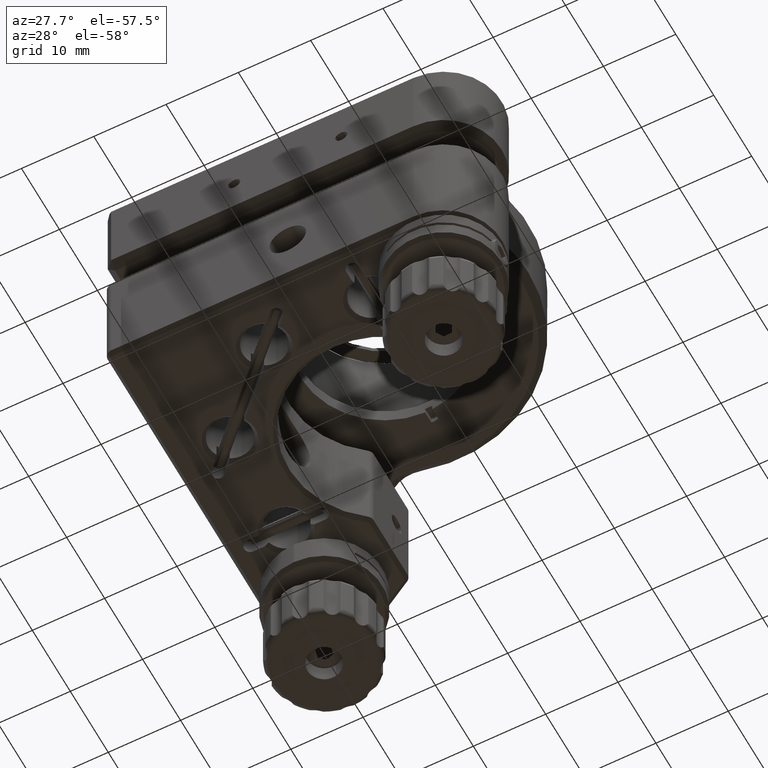
[diagram: clean part render]
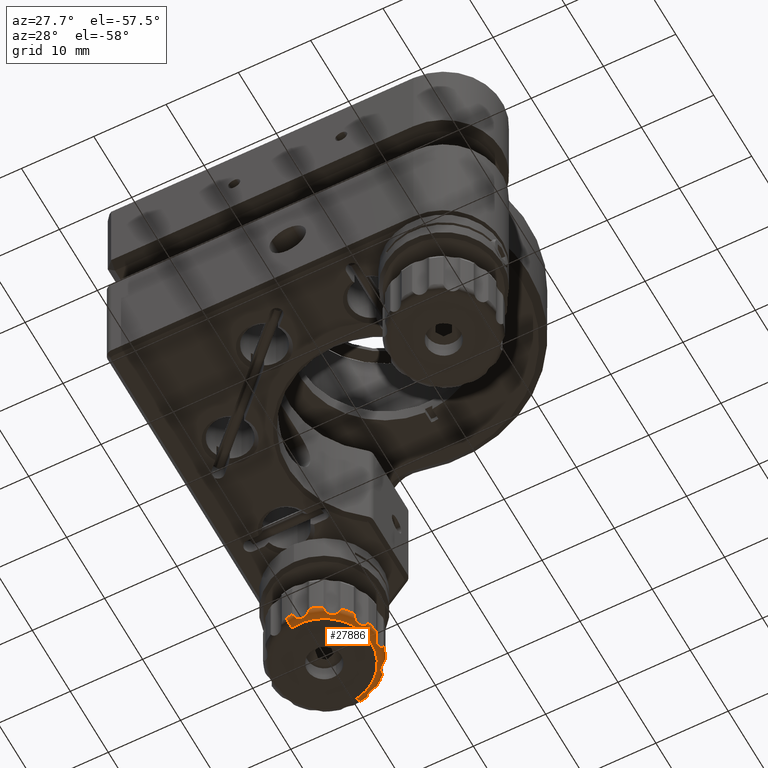
[diagram: same view with one face highlighted and labeled with its STEP entity id]
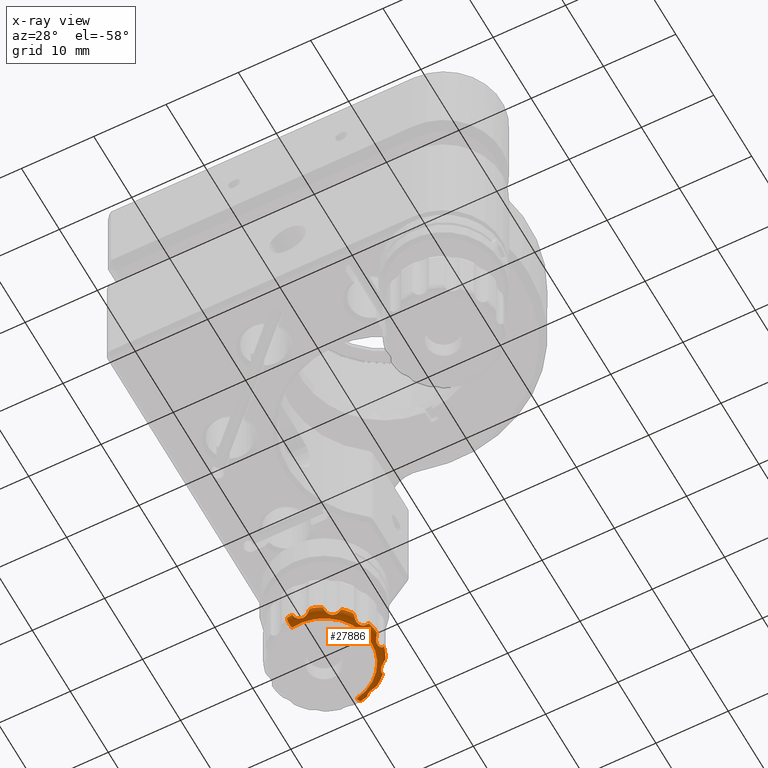
[diagram: x-ray of the same camera — body ghosted, the highlighted face saturated]
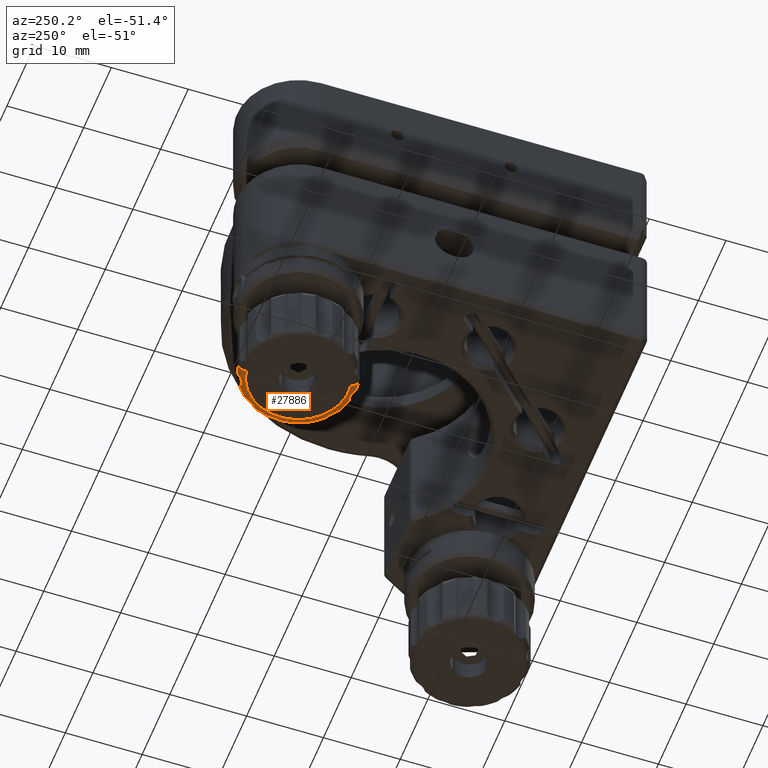
[diagram: same view with one face highlighted and labeled with its STEP entity id]
A machine part, auxiliary view. The second image highlights one B-rep face of the part: STEP entity #27886.
The next image is the same camera in x-ray: the body ghosted, the highlighted face saturated — about 0% of this face is hidden behind the body in this view.
A second angle (auxiliary view) of the same face is appended — the face is thin or edge-on in the first view.
In plain terms, the highlighted toroidal blend (fillet) surface has major radius 6.5 mm and minor (blend) radius 1 mm.
Its self-contained STEP definition (entity closure, byte-faithful):
#78 = CIRCLE ( 'NONE', #13789, 7.500000000000024869 ) ;
#87 = CARTESIAN_POINT ( 'NONE',  ( -10.95866238262722092, 11.59530621690277030, 6.799584923580566986 ) ) ;
#428 = ORIENTED_EDGE ( 'NONE', *, *, #15125, .T. ) ;
#485 = B_SPLINE_CURVE_WITH_KNOTS ( 'NONE', 3,
 ( #18177, #6959, #11119, #19899, #26383, #22367, #5069, #15441, #22650, #15736, #2612, #11415, #20488, #16027 ),
 .UNSPECIFIED., .F., .F.,
 ( 4, 2, 2, 2, 2, 2, 4 ),
 ( 0.0004549188434784700230, 0.0007454011220208991637, 0.001035883400563328196, 0.001616847957648186260, 0.002197812514733044759, 0.002488294793275473791, 0.002778777071817902823 ),
 .UNSPECIFIED. ) ;
#576 = CARTESIAN_POINT ( 'NONE',  ( -4.748253724212862181, 7.914794851636129280, 6.100335854159443016 ) ) ;
#650 = ORIENTED_EDGE ( 'NONE', *, *, #17443, .T. ) ;
#680 = B_SPLINE_CURVE_WITH_KNOTS ( 'NONE', 3,
 ( #2212, #21537, #11017, #21682 ),
 .UNSPECIFIED., .F., .F.,
 ( 4, 4 ),
 ( -6.324575239407455928E-06, 0.0004951179910539974362 ),
 .UNSPECIFIED. ) ;
#750 = CARTESIAN_POINT ( 'NONE',  ( -10.95866238262722092, 11.59530621690277030, 6.799584923580566986 ) ) ;
#759 = CARTESIAN_POINT ( 'NONE',  ( -6.592760269388650229, 6.058786813096808110, 5.957149717359443208 ) ) ;
#808 = AXIS2_PLACEMENT_3D ( 'NONE', #18173, #16163, #22220 ) ;
#1058 = VERTEX_POINT ( 'NONE', #1864 ) ;
#1061 = CARTESIAN_POINT ( 'NONE',  ( -7.517848610338219828, 5.041493032877252922, 6.368140108404588773 ) ) ;
#1183 = DIRECTION ( 'NONE',  ( 5.805197601919988669E-17, -3.171730199790574274E-17, -1.000000000000000000 ) ) ;
#1362 = CARTESIAN_POINT ( 'NONE',  ( -7.388941179663738978, 17.80037378323822139, 6.041171673521851915 ) ) ;
#1538 = CARTESIAN_POINT ( 'NONE',  ( -5.728431768519461897, 6.219928302444008850, 6.799584923580574092 ) ) ;
#1557 = B_SPLINE_CURVE_WITH_KNOTS ( 'NONE', 3,
 ( #22456, #25020, #11503, #4873 ),
 .UNSPECIFIED., .F., .F.,
 ( 4, 4 ),
 ( 0.0002498727217915351737, 0.0004951179910540150003 ),
 .UNSPECIFIED. ) ;
#1642 = AXIS2_PLACEMENT_3D ( 'NONE', #27291, #9878, #16775 ) ;
#1677 = CARTESIAN_POINT ( 'NONE',  ( -3.679395820883887058, 13.27051490927705579, 6.508518308653279405 ) ) ;
#1796 = EDGE_CURVE ( 'NONE', #9294, #18289, #12080, .T. ) ;
#1864 = CARTESIAN_POINT ( 'NONE',  ( -5.583284468168364434, 16.82553683101043518, 6.799584923580552775 ) ) ;
#1874 = EDGE_CURVE ( 'NONE', #7992, #18151, #21737, .T. ) ;
#1875 = B_SPLINE_CURVE_WITH_KNOTS ( 'NONE', 3,
 ( #5777, #28088, #25365, #7820, #10104, #25505, #9969, #8091, #23629, #12126, #25642, #8366, #17143, #21336 ),
 .UNSPECIFIED., .F., .F.,
 ( 4, 2, 2, 2, 2, 2, 4 ),
 ( 0.0004549188434784966944, 0.0007454011220209424233, 0.001035883400563388044, 0.001616847957648282971, 0.002197812514733182235, 0.002488294793275632084, 0.002778777071818081933 ),
 .UNSPECIFIED. ) ;
#1897 = CARTESIAN_POINT ( 'NONE',  ( -8.235165340135910839, 18.06679445681695384, 5.944271129393081665 ) ) ;
#1908 = CARTESIAN_POINT ( 'NONE',  ( -3.731314505073445975, 13.19440262534313568, 6.368140108402583266 ) ) ;
#2042 = CARTESIAN_POINT ( 'NONE',  ( -3.477298599693472880, 11.06691625919334676, 6.799584923580588303 ) ) ;
#2190 = CARTESIAN_POINT ( 'NONE',  ( -8.729846556660113777, 18.65392128507203040, 6.368140108402604582 ) ) ;
#2212 = CARTESIAN_POINT ( 'NONE',  ( -3.741460845929453605, 9.555207695093514531, 6.799584923580588303 ) ) ;
#2250 = VERTEX_POINT ( 'NONE', #9344 ) ;
#2612 = CARTESIAN_POINT ( 'NONE',  ( -9.601860642885224451, 4.504505210427911521, 6.100694920292903944 ) ) ;
#2686 = CIRCLE ( 'NONE', #22950, 7.500000000000024869 ) ;
#2690 = AXIS2_PLACEMENT_3D ( 'NONE', #22280, #13472, #11317 ) ;
#2809 = ORIENTED_EDGE ( 'NONE', *, *, #26145, .T. ) ;
#2907 = CARTESIAN_POINT ( 'NONE',  ( -4.527764062803671052, 8.823429332292503702, 5.933648223978990721 ) ) ;
#3192 = CARTESIAN_POINT ( 'NONE',  ( -3.948394391377331836, 9.343221662203619715, 6.286389277143039855 ) ) ;
#3271 = CARTESIAN_POINT ( 'NONE',  ( -7.512990681044648511, 17.80524665409711815, 5.998818593068581784 ) ) ;
#3275 = CARTESIAN_POINT ( 'NONE',  ( -10.95866238262721382, 11.59530621690277563, 5.799584923580551887 ) ) ;
#3442 = B_SPLINE_CURVE_WITH_KNOTS ( 'NONE', 3,
 ( #9967, #15913, #4675, #22400 ),
 .UNSPECIFIED., .F., .F.,
 ( 4, 4 ),
 ( -6.324575239414423621E-06, 0.0004951179910539871363 ),
 .UNSPECIFIED. ) ;
#3518 = ORIENTED_EDGE ( 'NONE', *, *, #26836, .F. ) ;
#3579 = ORIENTED_EDGE ( 'NONE', *, *, #21513, .T. ) ;
#3626 = EDGE_CURVE ( 'NONE', #25603, #10283, #4178, .T. ) ;
#3862 = CARTESIAN_POINT ( 'NONE',  ( -3.668304205684082664, 13.35806813161526740, 6.653685800745033241 ) ) ;
#3939 = CARTESIAN_POINT ( 'NONE',  ( -3.980944873766438796, 12.60802865550045304, 5.957149717359471630 ) ) ;
#4178 = B_SPLINE_CURVE_WITH_KNOTS ( 'NONE', 3,
 ( #22883, #15983, #27202, #5029 ),
 .UNSPECIFIED., .F., .F.,
 ( 4, 4 ),
 ( 6.632913190954212219E-16, 0.0004984791478706715679 ),
 .UNSPECIFIED. ) ;
#4282 = ORIENTED_EDGE ( 'NONE', *, *, #9191, .T. ) ;
#4525 = CARTESIAN_POINT ( 'NONE',  ( -11.32148429342844587, 4.134576837560035578, 6.508528969736903314 ) ) ;
#4675 = CARTESIAN_POINT ( 'NONE',  ( -5.492236965426045892, 16.68571278201107333, 6.508518308653265194 ) ) ;
#4698 = CARTESIAN_POINT ( 'NONE',  ( -5.868255817518894801, 6.128880799701676096, 6.508518308653298945 ) ) ;
#4788 = B_SPLINE_CURVE_WITH_KNOTS ( 'NONE', 3,
 ( #11124, #8546, #19904, #2042 ),
 .UNSPECIFIED., .F., .F.,
 ( 4, 4 ),
 ( 6.462985806367339405E-16, 0.0004984791478706683153 ),
 .UNSPECIFIED. ) ;
#4873 = CARTESIAN_POINT ( 'NONE',  ( -9.359565974186843107, 4.367958339349104158, 6.368140108402604582 ) ) ;
#5029 = CARTESIAN_POINT ( 'NONE',  ( -4.743806270508400758, 7.397025198955069492, 6.799584923580594520 ) ) ;
#5069 = CARTESIAN_POINT ( 'NONE',  ( -10.53005662950013033, 4.605902762144390650, 5.933471261068762104 ) ) ;
#5162 = CARTESIAN_POINT ( 'NONE',  ( -6.876671866601023808, 17.85709005342670608, 6.576489213248215115 ) ) ;
#5212 = CARTESIAN_POINT ( 'NONE',  ( -4.209137050494455856, 9.171410456023618707, 6.056361997152541754 ) ) ;
#5351 = CARTESIAN_POINT ( 'NONE',  ( -4.737696763456687776, 8.277951690677058494, 5.956695219371647809 ) ) ;
#5429 = CARTESIAN_POINT ( 'NONE',  ( -3.688333246710183033, 13.43712983914163672, 6.799584923580574092 ) ) ;
#5465 = CARTESIAN_POINT ( 'NONE',  ( -4.404849198601559657, 15.03611998919171810, 6.368140108404595878 ) ) ;
#5535 = CARTESIAN_POINT ( 'NONE',  ( -12.24968085284337960, 4.207256994708814091, 6.799584923580566986 ) ) ;
#5567 = VERTEX_POINT ( 'NONE', #21446 ) ;
#5579 = CARTESIAN_POINT ( 'NONE',  ( -7.636444025552900250, 17.82681940533046117, 5.972305691488108081 ) ) ;
#5675 = DIRECTION ( 'NONE',  ( -5.805197601919988669E-17, 3.171730199790574274E-17, 1.000000000000000000 ) ) ;
#5777 = CARTESIAN_POINT ( 'NONE',  ( -4.404849198601559657, 15.03611998919171810, 6.368140108404595878 ) ) ;
#5834 = EDGE_CURVE ( 'NONE', #5567, #19864, #1557, .T. ) ;
#5870 = EDGE_CURVE ( 'NONE', #12090, #2250, #24135, .T. ) ;
#5948 = B_SPLINE_CURVE_WITH_KNOTS ( 'NONE', 3,
 ( #1538, #27928, #4698, #25897 ),
 .UNSPECIFIED., .F., .F.,
 ( 4, 4 ),
 ( -6.324575239430017497E-06, 0.0004951179910540108803 ),
 .UNSPECIFIED. ) ;
#6171 = CARTESIAN_POINT ( 'NONE',  ( -4.743806270508400758, 7.397025198955069492, 6.799584923580594520 ) ) ;
#6241 = CARTESIAN_POINT ( 'NONE',  ( -8.729846556660113777, 18.65392128507203040, 6.368140108402604582 ) ) ;
#6252 = CARTESIAN_POINT ( 'NONE',  ( -3.787393870913306593, 11.58702207507517912, 6.056084462056426254 ) ) ;
#6430 = CARTESIAN_POINT ( 'NONE',  ( -8.769802385992154115, 18.73694032647820862, 6.508518308653310491 ) ) ;
#6636 = VERTEX_POINT ( 'NONE', #27845 ) ;
#6703 = ORIENTED_EDGE ( 'NONE', *, *, #5834, .T. ) ;
#6861 = VERTEX_POINT ( 'NONE', #24085 ) ;
#6959 = CARTESIAN_POINT ( 'NONE',  ( -11.21772686629386406, 4.236450507484420314, 6.286978386712250177 ) ) ;
#7041 = VERTEX_POINT ( 'NONE', #9400 ) ;
#7052 = EDGE_CURVE ( 'NONE', #25603, #17151, #23532, .T. ) ;
#7161 = EDGE_CURVE ( 'NONE', #8087, #7041, #1875, .T. ) ;
#7230 = CARTESIAN_POINT ( 'NONE',  ( -11.25573683814639203, 4.199130621734763480, 6.368140108404602984 ) ) ;
#7437 = CARTESIAN_POINT ( 'NONE',  ( -5.960130331040505602, 6.135787557173944862, 6.368140108402590371 ) ) ;
#7592 = CARTESIAN_POINT ( 'NONE',  ( -7.517848610338219828, 5.041493032877252922, 6.368140108404588773 ) ) ;
#7613 = AXIS2_PLACEMENT_3D ( 'NONE', #3275, #25161, #9345 ) ;
#7674 = CARTESIAN_POINT ( 'NONE',  ( -4.139447707968682444, 9.224930488180858035, 6.100694920292938583 ) ) ;
#7717 = CARTESIAN_POINT ( 'NONE',  ( -7.636444025552900250, 17.82681940533046117, 5.972305691488108081 ) ) ;
#7733 = CIRCLE ( 'NONE', #23800, 0.9999999999999986677 ) ;
#7746 = ORIENTED_EDGE ( 'NONE', *, *, #7161, .F. ) ;
#7750 = AXIS2_PLACEMENT_3D ( 'NONE', #12576, #1183, #25408 ) ;
#7796 = CARTESIAN_POINT ( 'NONE',  ( -3.688333246710183033, 13.43712983914163672, 6.799584923580574092 ) ) ;
#7820 = CARTESIAN_POINT ( 'NONE',  ( -4.666041712181718815, 15.13342220033907104, 6.100335854159473215 ) ) ;
#7990 = CARTESIAN_POINT ( 'NONE',  ( -9.839779708439873929, 17.99828220947089008, 5.799584923580558993 ) ) ;
#7992 = VERTEX_POINT ( 'NONE', #14248 ) ;
#8067 = EDGE_CURVE ( 'NONE', #9737, #15266, #9464, .T. ) ;
#8087 = VERTEX_POINT ( 'NONE', #5465 ) ;
#8091 = CARTESIAN_POINT ( 'NONE',  ( -5.342697424479962542, 15.77868908871942644, 5.933648223979023584 ) ) ;
#8204 = CARTESIAN_POINT ( 'NONE',  ( -3.731314505073445975, 13.19440262534313568, 6.368140108402583266 ) ) ;
#8259 = CARTESIAN_POINT ( 'NONE',  ( -9.199983067436532380, 4.312899425147287857, 6.650138616608368025 ) ) ;
#8278 = CARTESIAN_POINT ( 'NONE',  ( -3.969258927868740905, 12.02391197002981826, 5.933471261068819835 ) ) ;
#8300 = CARTESIAN_POINT ( 'NONE',  ( -4.250907436262808758, 14.95128552332329974, 6.654548033386327610 ) ) ;
#8366 = CARTESIAN_POINT ( 'NONE',  ( -5.505385139744561229, 16.47229615391264090, 6.216230672052378559 ) ) ;
#8546 = CARTESIAN_POINT ( 'NONE',  ( -3.497933003284379172, 11.23248430610145121, 6.508528969736896208 ) ) ;
#8620 = VERTEX_POINT ( 'NONE', #22723 ) ;
#8623 = CARTESIAN_POINT ( 'NONE',  ( -10.95866238262722092, 11.59530621690277030, 6.799584923580566986 ) ) ;
#8625 = CARTESIAN_POINT ( 'NONE',  ( -6.876671866601023808, 17.85709005342670608, 6.576489213248215115 ) ) ;
#8702 = VERTEX_POINT ( 'NONE', #5429 ) ;
#8911 = DIRECTION ( 'NONE',  ( 0.1721357960288280586, 0.9850732296258597476, 0.000000000000000000 ) ) ;
#8966 = ORIENTED_EDGE ( 'NONE', *, *, #13641, .F. ) ;
#9146 = CARTESIAN_POINT ( 'NONE',  ( -9.359565974186843107, 4.367958339349104158, 6.368140108402604582 ) ) ;
#9157 = CARTESIAN_POINT ( 'NONE',  ( -7.482355512125953290, 5.158358759128813809, 6.215822635340600755 ) ) ;
#9191 = EDGE_CURVE ( 'NONE', #8087, #20705, #12628, .T. ) ;
#9294 = VERTEX_POINT ( 'NONE', #22114 ) ;
#9323 = B_SPLINE_CURVE_WITH_KNOTS ( 'NONE', 3,
 ( #5162, #22739, #18131, #13799 ),
 .UNSPECIFIED., .F., .F.,
 ( 4, 4 ),
 ( 0.0002437774083435517150, 0.0004984791478706733026 ),
 .UNSPECIFIED. ) ;
#9344 = CARTESIAN_POINT ( 'NONE',  ( -12.07754505681456614, 5.192330224334656741, 5.799584923580558993 ) ) ;
#9345 = DIRECTION ( 'NONE',  ( 0.1721357960288220357, 0.9850732296258607468, 0.000000000000000000 ) ) ;
#9400 = CARTESIAN_POINT ( 'NONE',  ( -5.499143722898303110, 16.59383826848945631, 6.368140108402569055 ) ) ;
#9464 = CIRCLE ( 'NONE', #22806, 7.500000000000024869 ) ;
#9524 = CIRCLE ( 'NONE', #18705, 7.500000000000026645 ) ;
#9584 = CARTESIAN_POINT ( 'NONE',  ( -6.081672445617256173, 6.142028974020218968, 6.216230672052364348 ) ) ;
#9737 = VERTEX_POINT ( 'NONE', #5535 ) ;
#9764 = VERTEX_POINT ( 'NONE', #7717 ) ;
#9834 = CARTESIAN_POINT ( 'NONE',  ( -4.752303745037355753, 8.002497683774643988, 6.056084462056380957 ) ) ;
#9878 = DIRECTION ( 'NONE',  ( 0.9850732296258607468, -0.1721357960288218691, 6.264513053069230145E-17 ) ) ;
#9911 = CARTESIAN_POINT ( 'NONE',  ( -9.667643912411053364, 18.98335543909674428, 6.799584923580566986 ) ) ;
#9967 = CARTESIAN_POINT ( 'NONE',  ( -5.583284468168364434, 16.82553683101043518, 6.799584923580552775 ) ) ;
#9969 = CARTESIAN_POINT ( 'NONE',  ( -5.119964310071172697, 15.46119141469817393, 5.933471261068818059 ) ) ;
#10104 = CARTESIAN_POINT ( 'NONE',  ( -4.744019603209739699, 15.17376619548845085, 6.056084462056424478 ) ) ;
#10283 = VERTEX_POINT ( 'NONE', #6171 ) ;
#10309 = ORIENTED_EDGE ( 'NONE', *, *, #11566, .F. ) ;
#10394 = CARTESIAN_POINT ( 'NONE',  ( -3.741460845929453605, 9.555207695093514531, 6.799584923580588303 ) ) ;
#10428 = CARTESIAN_POINT ( 'NONE',  ( -3.599806673208855390, 11.33624173323616091, 6.286978386712280376 ) ) ;
#10592 = VERTEX_POINT ( 'NONE', #19982 ) ;
#10634 = CARTESIAN_POINT ( 'NONE',  ( -11.48705234033655209, 4.113942433969103973, 6.799584923580594520 ) ) ;
#10839 = ORIENTED_EDGE ( 'NONE', *, *, #5870, .F. ) ;
#10922 = DIRECTION ( 'NONE',  ( -5.805197601919988669E-17, 3.171730199790574274E-17, 1.000000000000000000 ) ) ;
#11012 = EDGE_CURVE ( 'NONE', #7992, #9764, #21904, .T. ) ;
#11017 = CARTESIAN_POINT ( 'NONE',  ( -3.817028273051738640, 9.406446220267843827, 6.508518308653306939 ) ) ;
#11119 = CARTESIAN_POINT ( 'NONE',  ( -11.16656605030979676, 4.282592760394233089, 6.215822635340598978 ) ) ;
#11124 = CARTESIAN_POINT ( 'NONE',  ( -3.562486787459160364, 11.29823176138354768, 6.368140108404588773 ) ) ;
#11127 = CARTESIAN_POINT ( 'NONE',  ( -7.887850991695673386, 17.88768492454351744, 5.933850052705684774 ) ) ;
#11238 = B_SPLINE_CURVE_WITH_KNOTS ( 'NONE', 3,
 ( #17364, #26144, #6430, #23996 ),
 .UNSPECIFIED., .F., .F.,
 ( 4, 4 ),
 ( -6.324575239408487614E-06, 0.0004951179910539938583 ),
 .UNSPECIFIED. ) ;
#11317 = DIRECTION ( 'NONE',  ( 0.1721357960288097677, 0.9850732296258628562, 0.000000000000000000 ) ) ;
#11331 = EDGE_CURVE ( 'NONE', #11744, #27924, #11238, .T. ) ;
#11380 = ORIENTED_EDGE ( 'NONE', *, *, #21746, .T. ) ;
#11415 = CARTESIAN_POINT ( 'NONE',  ( -9.461703824616789049, 4.434134622181961305, 6.216230672052326156 ) ) ;
#11448 = DIRECTION ( 'NONE',  ( -0.9850732296258607468, 0.1721357960288219802, -6.264513053069230145E-17 ) ) ;
#11503 = CARTESIAN_POINT ( 'NONE',  ( -9.322341017985912970, 4.342565976315500009, 6.436796205497723022 ) ) ;
#11566 = EDGE_CURVE ( 'NONE', #15522, #10592, #26630, .T. ) ;
#11673 = EDGE_CURVE ( 'NONE', #9737, #2250, #13165, .T. ) ;
#11744 = VERTEX_POINT ( 'NONE', #23401 ) ;
#11746 = CARTESIAN_POINT ( 'NONE',  ( -7.380202404041470210, 5.380663437485386780, 6.056084462056381845 ) ) ;
#11916 = ORIENTED_EDGE ( 'NONE', *, *, #12313, .T. ) ;
#11982 = CARTESIAN_POINT ( 'NONE',  ( -4.715238637320058324, 7.691521938120039259, 6.286978386712256395 ) ) ;
#12080 = CIRCLE ( 'NONE', #20821, 7.500000000000024869 ) ;
#12090 = VERTEX_POINT ( 'NONE', #7990 ) ;
#12093 = CARTESIAN_POINT ( 'NONE',  ( -10.95866238262722092, 11.59530621690277030, 6.799584923580566986 ) ) ;
#12126 = CARTESIAN_POINT ( 'NONE',  ( -5.484744411513943874, 16.22861873757665307, 6.056361997152567511 ) ) ;
#12154 = EDGE_CURVE ( 'NONE', #1058, #6636, #9524, .T. ) ;
#12313 = EDGE_CURVE ( 'NONE', #9294, #5567, #25257, .T. ) ;
#12495 = EDGE_CURVE ( 'NONE', #16995, #19864, #485, .T. ) ;
#12576 = CARTESIAN_POINT ( 'NONE',  ( -10.95866238262722092, 11.59530621690277030, 6.799584923580566986 ) ) ;
#12584 = ORIENTED_EDGE ( 'NONE', *, *, #1796, .F. ) ;
#12628 = B_SPLINE_CURVE_WITH_KNOTS ( 'NONE', 3,
 ( #15052, #28020, #8300, #23846 ),
 .UNSPECIFIED., .F., .F.,
 ( 4, 4 ),
 ( 6.552250584793716045E-16, 0.0004984791478706630027 ),
 .UNSPECIFIED. ) ;
#12865 = CARTESIAN_POINT ( 'NONE',  ( -3.797490787906338650, 13.09226477491308316, 6.216230672052393658 ) ) ;
#13165 = CIRCLE ( 'NONE', #1642, 1.000000000000000222 ) ;
#13300 = EDGE_CURVE ( 'NONE', #16995, #15266, #26940, .T. ) ;
#13472 = DIRECTION ( 'NONE',  ( -5.805197601919988669E-17, 3.171730199790574274E-17, 1.000000000000000000 ) ) ;
#13617 = CARTESIAN_POINT ( 'NONE',  ( -7.675579617641243857, 4.852060147074687357, 6.799584923580588303 ) ) ;
#13641 = EDGE_CURVE ( 'NONE', #6861, #8620, #18017, .T. ) ;
#13789 = AXIS2_PLACEMENT_3D ( 'NONE', #750, #14027, #24969 ) ;
#13799 = CARTESIAN_POINT ( 'NONE',  ( -6.760381364679384220, 17.81016232902152296, 6.799584923580552775 ) ) ;
#13880 = CARTESIAN_POINT ( 'NONE',  ( -9.839779708439873929, 17.99828220947088653, 6.799584923580566986 ) ) ;
#13990 = CARTESIAN_POINT ( 'NONE',  ( -4.008426581734226168, 9.311124559191943817, 6.216230672052368789 ) ) ;
#14027 = DIRECTION ( 'NONE',  ( -5.805197601919988669E-17, 3.171730199790574274E-17, 1.000000000000000000 ) ) ;
#14134 = CARTESIAN_POINT ( 'NONE',  ( -4.409420540223464968, 8.983490821280659233, 5.957149717359439656 ) ) ;
#14187 = TOROIDAL_SURFACE ( 'NONE', #7750, 6.500000000000000000, 1.000000000000000000 ) ;
#14220 = CARTESIAN_POINT ( 'NONE',  ( -7.003300559748127263, 17.85204494540918674, 6.368140108404554134 ) ) ;
#14248 = CARTESIAN_POINT ( 'NONE',  ( -7.003300559748127263, 17.85204494540918674, 6.368140108404554134 ) ) ;
#14480 = B_SPLINE_CURVE_WITH_KNOTS ( 'NONE', 3,
 ( #7592, #16883, #20543, #23652 ),
 .UNSPECIFIED., .F., .F.,
 ( 4, 4 ),
 ( 6.517719933140138087E-16, 0.0004984791478706792657 ),
 .UNSPECIFIED. ) ;
#14560 = ORIENTED_EDGE ( 'NONE', *, *, #15160, .F. ) ;
#14630 = ORIENTED_EDGE ( 'NONE', *, *, #8067, .F. ) ;
#15029 = CARTESIAN_POINT ( 'NONE',  ( -3.901454101074003145, 12.87091357792225388, 6.056361997152577281 ) ) ;
#15052 = CARTESIAN_POINT ( 'NONE',  ( -4.404849198601559657, 15.03611998919171810, 6.368140108404595878 ) ) ;
#15095 = CARTESIAN_POINT ( 'NONE',  ( -7.003300559748127263, 17.85204494540918674, 6.368140108404554134 ) ) ;
#15125 = EDGE_CURVE ( 'NONE', #18117, #10592, #5948, .T. ) ;
#15160 = EDGE_CURVE ( 'NONE', #8702, #20705, #23385, .T. ) ;
#15239 = CARTESIAN_POINT ( 'NONE',  ( -6.959670227598426351, 17.86330831883515202, 6.436796205499161871 ) ) ;
#15266 = VERTEX_POINT ( 'NONE', #10634 ) ;
#15305 = CARTESIAN_POINT ( 'NONE',  ( -7.761722623202111038, 17.84871110889437773, 5.945400797636557044 ) ) ;
#15441 = CARTESIAN_POINT ( 'NONE',  ( -10.14372902095085571, 4.640046460475807599, 5.933648223978971181 ) ) ;
#15522 = VERTEX_POINT ( 'NONE', #1061 ) ;
#15599 = CARTESIAN_POINT ( 'NONE',  ( -8.698670176377783392, 18.58914392344973265, 6.258607050835315100 ) ) ;
#15736 = CARTESIAN_POINT ( 'NONE',  ( -9.683055021607646751, 4.538097935349648893, 6.056361997152508003 ) ) ;
#15789 = CARTESIAN_POINT ( 'NONE',  ( -7.420546399190856235, 5.302685546457346355, 6.100335854159435911 ) ) ;
#15913 = CARTESIAN_POINT ( 'NONE',  ( -5.526407956064326221, 16.76708190434031565, 6.653685800744046475 ) ) ;
#15983 = CARTESIAN_POINT ( 'NONE',  ( -4.678892164756041971, 7.550728535427945864, 6.508528969736903314 ) ) ;
#16027 = CARTESIAN_POINT ( 'NONE',  ( -9.359565974186843107, 4.367958339349104158, 6.368140108402604582 ) ) ;
#16163 = DIRECTION ( 'NONE',  ( -5.805197601919988669E-17, 3.171730199790574274E-17, 1.000000000000000000 ) ) ;
#16196 = DIRECTION ( 'NONE',  ( -0.1721357960288215638, -0.9850732296258608578, 0.000000000000000000 ) ) ;
#16308 = VERTEX_POINT ( 'NONE', #10394 ) ;
#16530 = CARTESIAN_POINT ( 'NONE',  ( -7.071399392722216959, 17.83446491454831673, 6.260980711301525226 ) ) ;
#16629 = FACE_OUTER_BOUND ( 'NONE', #23568, .T. ) ;
#16663 = ORIENTED_EDGE ( 'NONE', *, *, #3626, .T. ) ;
#16715 = CARTESIAN_POINT ( 'NONE',  ( -3.900047314457915526, 9.366490390935803489, 6.368140108402604582 ) ) ;
#16775 = DIRECTION ( 'NONE',  ( 0.1721357960288213140, 0.9850732296258609688, 0.000000000000000000 ) ) ;
#16883 = CARTESIAN_POINT ( 'NONE',  ( -7.542510684759277773, 4.952714088230431244, 6.508528969736904202 ) ) ;
#16961 = CARTESIAN_POINT ( 'NONE',  ( -4.701923654120762741, 7.639944394023766350, 6.368140108404595878 ) ) ;
#16966 = DIRECTION ( 'NONE',  ( -5.805197601919988669E-17, 3.171730199790574274E-17, 1.000000000000000000 ) ) ;
#16995 = VERTEX_POINT ( 'NONE', #7230 ) ;
#17053 = CARTESIAN_POINT ( 'NONE',  ( -4.003402626200152525, 12.41023957857909465, 5.933648223979029801 ) ) ;
#17143 = CARTESIAN_POINT ( 'NONE',  ( -5.503165951162116265, 16.54033410731235776, 6.286389277143033638 ) ) ;
#17151 = VERTEX_POINT ( 'NONE', #16715 ) ;
#17183 = CARTESIAN_POINT ( 'NONE',  ( -8.516508431290194636, 18.32102961545302477, 6.038264389239904162 ) ) ;
#17364 = CARTESIAN_POINT ( 'NONE',  ( -8.918563860817847910, 18.81250775360049232, 6.799584923580588303 ) ) ;
#17443 = EDGE_CURVE ( 'NONE', #18151, #6636, #9323, .T. ) ;
#17503 = B_SPLINE_CURVE_WITH_KNOTS ( 'NONE', 3,
 ( #26534, #15305, #11127, #26244, #1897, #19484, #17183, #24093, #15599, #6241 ),
 .UNSPECIFIED., .F., .F.,
 ( 4, 2, 2, 2, 4 ),
 ( 0.001221977629040587590, 0.001611177489734929788, 0.002000377350429271769, 0.002389577211123613751, 0.002778777071817956166 ),
 .UNSPECIFIED. ) ;
#17904 = ORIENTED_EDGE ( 'NONE', *, *, #13300, .T. ) ;
#17938 = CARTESIAN_POINT ( 'NONE',  ( -7.503590951991591318, 5.092817987929043611, 6.286978386712236855 ) ) ;
#18013 = ORIENTED_EDGE ( 'NONE', *, *, #7052, .F. ) ;
#18017 = B_SPLINE_CURVE_WITH_KNOTS ( 'NONE', 3,
 ( #27866, #10428, #25695, #19203, #6252, #27999, #8278, #17053, #3939, #15029, #25830, #12865, #23823, #1908 ),
 .UNSPECIFIED., .F., .F.,
 ( 4, 2, 2, 2, 2, 2, 4 ),
 ( 0.0004549188434784924660, 0.0007454011220209325571, 0.001035883400563372865, 0.001616847957648254131, 0.002197812514733135398, 0.002488294793275575706, 0.002778777071818015580 ),
 .UNSPECIFIED. ) ;
#18034 = CARTESIAN_POINT ( 'NONE',  ( -4.729618592535764776, 7.758899630895477628, 6.215822635340616742 ) ) ;
#18117 = VERTEX_POINT ( 'NONE', #19530 ) ;
#18131 = CARTESIAN_POINT ( 'NONE',  ( -6.794709792126410797, 17.83335198663013799, 6.725477213386827025 ) ) ;
#18151 = VERTEX_POINT ( 'NONE', #26876 ) ;
#18173 = CARTESIAN_POINT ( 'NONE',  ( -10.95866238262722092, 11.59530621690277030, 6.799584923580566986 ) ) ;
#18177 = CARTESIAN_POINT ( 'NONE',  ( -11.25573683814639203, 4.199130621734763480, 6.368140108404602984 ) ) ;
#18289 = VERTEX_POINT ( 'NONE', #13617 ) ;
#18366 = CARTESIAN_POINT ( 'NONE',  ( -6.013634492217529548, 6.139809785437769563, 6.286389277143023868 ) ) ;
#18491 = CARTESIAN_POINT ( 'NONE',  ( -9.157233009157868864, 4.314743832917480759, 6.725042067783215671 ) ) ;
#18517 = EDGE_CURVE ( 'NONE', #15522, #18289, #14480, .T. ) ;
#18606 = CARTESIAN_POINT ( 'NONE',  ( -4.701923654120762741, 7.639944394023766350, 6.368140108404595878 ) ) ;
#18705 = AXIS2_PLACEMENT_3D ( 'NONE', #23247, #5675, #25108 ) ;
#18776 = ORIENTED_EDGE ( 'NONE', *, *, #11012, .F. ) ;
#18954 = ORIENTED_EDGE ( 'NONE', *, *, #27626, .F. ) ;
#19203 = CARTESIAN_POINT ( 'NONE',  ( -3.740035033924196561, 11.51309420487164914, 6.100335854159480320 ) ) ;
#19263 = DIRECTION ( 'NONE',  ( -5.805197601919988669E-17, 3.171730199790574274E-17, 1.000000000000000000 ) ) ;
#19267 = CARTESIAN_POINT ( 'NONE',  ( -6.917038569350641986, 17.86414389907038114, 6.505988204973853328 ) ) ;
#19484 = CARTESIAN_POINT ( 'NONE',  ( -8.430662896915634974, 18.22810815689803121, 5.996150812124745322 ) ) ;
#19530 = CARTESIAN_POINT ( 'NONE',  ( -5.728431768519461897, 6.219928302444008850, 6.799584923580574092 ) ) ;
#19761 = CARTESIAN_POINT ( 'NONE',  ( -9.242152444098808317, 4.320268277536916557, 6.576489213247959320 ) ) ;
#19864 = VERTEX_POINT ( 'NONE', #9146 ) ;
#19872 = EDGE_CURVE ( 'NONE', #18117, #10283, #78, .T. ) ;
#19899 = CARTESIAN_POINT ( 'NONE',  ( -11.04087439465835629, 4.376678868199793904, 6.100335854159428806 ) ) ;
#19904 = CARTESIAN_POINT ( 'NONE',  ( -3.471586543504610489, 11.14779207765642077, 6.654548033386764594 ) ) ;
#19982 = CARTESIAN_POINT ( 'NONE',  ( -5.960130331040505602, 6.135787557173944862, 6.368140108402590371 ) ) ;
#20097 = CARTESIAN_POINT ( 'NONE',  ( -7.517848610338219828, 5.041493032877252922, 6.368140108404588773 ) ) ;
#20282 = EDGE_CURVE ( 'NONE', #6861, #20735, #4788, .T. ) ;
#20458 = ORIENTED_EDGE ( 'NONE', *, *, #11673, .T. ) ;
#20488 = CARTESIAN_POINT ( 'NONE',  ( -9.403890822842331687, 4.398193771793899032, 6.286389277143005216 ) ) ;
#20534 = CARTESIAN_POINT ( 'NONE',  ( -7.092777184831743575, 5.756608144346829548, 5.933471261068787861 ) ) ;
#20543 = CARTESIAN_POINT ( 'NONE',  ( -7.602683076206120383, 4.887551270538733839, 6.654548033386647354 ) ) ;
#20705 = VERTEX_POINT ( 'NONE', #26915 ) ;
#20735 = VERTEX_POINT ( 'NONE', #22469 ) ;
#20768 = CARTESIAN_POINT ( 'NONE',  ( -3.900047314457915526, 9.366490390935803489, 6.368140108402604582 ) ) ;
#20821 = AXIS2_PLACEMENT_3D ( 'NONE', #87, #10922, #8911 ) ;
#20940 = CARTESIAN_POINT ( 'NONE',  ( -9.116838760388263907, 4.324977080985840772, 6.799584923580588303 ) ) ;
#21079 = CIRCLE ( 'NONE', #808, 7.500000000000023981 ) ;
#21132 = CARTESIAN_POINT ( 'NONE',  ( -7.167647180739718848, 17.81515161299299876, 6.171679278291550830 ) ) ;
#21336 = CARTESIAN_POINT ( 'NONE',  ( -5.499143722898303110, 16.59383826848945631, 6.368140108402569055 ) ) ;
#21446 = CARTESIAN_POINT ( 'NONE',  ( -9.242152444098808317, 4.320268277536916557, 6.576489213247959320 ) ) ;
#21513 = EDGE_CURVE ( 'NONE', #16308, #17151, #680, .T. ) ;
#21537 = CARTESIAN_POINT ( 'NONE',  ( -3.763646041350582561, 9.476723727396088037, 6.653685800745023471 ) ) ;
#21682 = CARTESIAN_POINT ( 'NONE',  ( -3.900047314457915526, 9.366490390935803489, 6.368140108402604582 ) ) ;
#21737 = B_SPLINE_CURVE_WITH_KNOTS ( 'NONE', 3,
 ( #15095, #15239, #19267, #8625 ),
 .UNSPECIFIED., .F., .F.,
 ( 4, 4 ),
 ( 6.430614309937310206E-16, 0.0002437774083435517150 ),
 .UNSPECIFIED. ) ;
#21746 = EDGE_CURVE ( 'NONE', #1058, #7041, #3442, .T. ) ;
#21904 = B_SPLINE_CURVE_WITH_KNOTS ( 'NONE', 3,
 ( #14220, #16530, #21132, #1362, #3271, #5579 ),
 .UNSPECIFIED., .F., .F.,
 ( 4, 2, 4 ),
 ( 0.0004549188434784975617, 0.0008384482362595426300, 0.001221977629040587590 ),
 .UNSPECIFIED. ) ;
#21907 = ORIENTED_EDGE ( 'NONE', *, *, #1874, .T. ) ;
#22096 = CARTESIAN_POINT ( 'NONE',  ( -11.48705234033655209, 4.113942433969103973, 6.799584923580594520 ) ) ;
#22114 = CARTESIAN_POINT ( 'NONE',  ( -9.116838760388263907, 4.324977080985840772, 6.799584923580588303 ) ) ;
#22220 = DIRECTION ( 'NONE',  ( 0.1721357960288167344, 0.9850732296258617460, 0.000000000000000000 ) ) ;
#22234 = ORIENTED_EDGE ( 'NONE', *, *, #19872, .F. ) ;
#22274 = CARTESIAN_POINT ( 'NONE',  ( -7.229825383468782007, 5.611910114246754233, 5.956695219371649586 ) ) ;
#22280 = CARTESIAN_POINT ( 'NONE',  ( -10.95866238262722092, 11.59530621690277030, 6.799584923580566986 ) ) ;
#22367 = CARTESIAN_POINT ( 'NONE',  ( -10.72109286611276602, 4.549114691518663989, 5.956695219371630934 ) ) ;
#22400 = CARTESIAN_POINT ( 'NONE',  ( -5.499143722898303110, 16.59383826848945631, 6.368140108402569055 ) ) ;
#22456 = CARTESIAN_POINT ( 'NONE',  ( -9.242152444098808317, 4.320268277536916557, 6.576489213247959320 ) ) ;
#22469 = CARTESIAN_POINT ( 'NONE',  ( -3.477298599693472880, 11.06691625919334676, 6.799584923580588303 ) ) ;
#22650 = CARTESIAN_POINT ( 'NONE',  ( -9.945939944029442259, 4.617588708042088541, 5.957149717359414787 ) ) ;
#22723 = CARTESIAN_POINT ( 'NONE',  ( -3.731314505073445975, 13.19440262534313568, 6.368140108402583266 ) ) ;
#22739 = CARTESIAN_POINT ( 'NONE',  ( -6.834496221700406160, 17.84972010570366763, 6.650149564172863847 ) ) ;
#22806 = AXIS2_PLACEMENT_3D ( 'NONE', #12093, #16966, #25745 ) ;
#22883 = CARTESIAN_POINT ( 'NONE',  ( -4.701923654120762741, 7.639944394023766350, 6.368140108404595878 ) ) ;
#22950 = AXIS2_PLACEMENT_3D ( 'NONE', #8623, #19263, #25889 ) ;
#23247 = CARTESIAN_POINT ( 'NONE',  ( -10.95866238262722092, 11.59530621690277030, 6.799584923580566986 ) ) ;
#23385 = CIRCLE ( 'NONE', #2690, 7.500000000000024869 ) ;
#23401 = CARTESIAN_POINT ( 'NONE',  ( -8.918563860817847910, 18.81250775360049232, 6.799584923580588303 ) ) ;
#23419 = B_SPLINE_CURVE_WITH_KNOTS ( 'NONE', 3,
 ( #7796, #3862, #1677, #8204 ),
 .UNSPECIFIED., .F., .F.,
 ( 4, 4 ),
 ( -6.324575239416352315E-06, 0.0004951179910539756437 ),
 .UNSPECIFIED. ) ;
#23532 = B_SPLINE_CURVE_WITH_KNOTS ( 'NONE', 3,
 ( #18606, #11982, #18034, #576, #9834, #5351, #27388, #2907, #14134, #5212, #7674, #13990, #3192, #20768 ),
 .UNSPECIFIED., .F., .F.,
 ( 4, 2, 2, 2, 2, 2, 4 ),
 ( 0.0004549188434784855271, 0.0007454011220209258350, 0.001035883400563364191, 0.001616847957648236784, 0.002197812514733109377, 0.002488294793275547083, 0.002778777071817985223 ),
 .UNSPECIFIED. ) ;
#23568 = EDGE_LOOP ( 'NONE', ( #14630, #20458, #10839, #3518, #24086, #23632, #25676, #18776, #21907, #650, #25963, #11380, #7746, #4282, #14560, #2809, #8966, #26537, #18954, #3579, #18013, #16663, #22234, #428, #10309, #24487, #12584, #11916, #6703, #25475, #17904 ) ) ;
#23629 = CARTESIAN_POINT ( 'NONE',  ( -5.422142978821145043, 15.96120833014125218, 5.957149717359465413 ) ) ;
#23632 = ORIENTED_EDGE ( 'NONE', *, *, #11331, .T. ) ;
#23652 = CARTESIAN_POINT ( 'NONE',  ( -7.675579617641243857, 4.852060147074687357, 6.799584923580588303 ) ) ;
#23800 = AXIS2_PLACEMENT_3D ( 'NONE', #13880, #11448, #16196 ) ;
#23823 = CARTESIAN_POINT ( 'NONE',  ( -3.761549937518292364, 13.15007777668751743, 6.286389277143051402 ) ) ;
#23846 = CARTESIAN_POINT ( 'NONE',  ( -4.215416312799025178, 14.87838898188871184, 6.799584923580594520 ) ) ;
#23996 = CARTESIAN_POINT ( 'NONE',  ( -8.729846556660113777, 18.65392128507203040, 6.368140108402604582 ) ) ;
#24085 = CARTESIAN_POINT ( 'NONE',  ( -3.562486787459160364, 11.29823176138354768, 6.368140108404588773 ) ) ;
#24086 = ORIENTED_EDGE ( 'NONE', *, *, #28460, .F. ) ;
#24093 = CARTESIAN_POINT ( 'NONE',  ( -8.650803358830303935, 18.50236164086848945, 6.169433517922162657 ) ) ;
#24135 = CIRCLE ( 'NONE', #7613, 6.500000000000019540 ) ;
#24251 = CARTESIAN_POINT ( 'NONE',  ( -11.25573683814639203, 4.199130621734763480, 6.368140108404602984 ) ) ;
#24487 = ORIENTED_EDGE ( 'NONE', *, *, #18517, .T. ) ;
#24561 = CARTESIAN_POINT ( 'NONE',  ( -6.238237104874284178, 6.132893281986246947, 6.100694920292941248 ) ) ;
#24969 = DIRECTION ( 'NONE',  ( 0.1721357960287984434, 0.9850732296258647436, 0.000000000000000000 ) ) ;
#24979 = CARTESIAN_POINT ( 'NONE',  ( -6.325349861953250219, 6.121388245789600724, 6.056361997152544419 ) ) ;
#25020 = CARTESIAN_POINT ( 'NONE',  ( -9.282519146848343894, 4.327322123183351188, 6.505988204973006894 ) ) ;
#25108 = DIRECTION ( 'NONE',  ( 0.1721357960288157352, 0.9850732296258618570, 0.000000000000000000 ) ) ;
#25161 = DIRECTION ( 'NONE',  ( 5.805197601919988669E-17, -3.171730199790574274E-17, -1.000000000000000000 ) ) ;
#25257 = B_SPLINE_CURVE_WITH_KNOTS ( 'NONE', 3,
 ( #20940, #18491, #8259, #19761 ),
 .UNSPECIFIED., .F., .F.,
 ( 4, 4 ),
 ( -6.324575239418810404E-06, 0.0002498727217915351737 ),
 .UNSPECIFIED. ) ;
#25365 = CARTESIAN_POINT ( 'NONE',  ( -4.521714924853186268, 15.07161308740397487, 6.215822635340654045 ) ) ;
#25408 = DIRECTION ( 'NONE',  ( 0.1721357960288220357, 0.9850732296258607468, -2.125104201098471547E-17 ) ) ;
#25475 = ORIENTED_EDGE ( 'NONE', *, *, #12495, .F. ) ;
#25505 = CARTESIAN_POINT ( 'NONE',  ( -4.975266279971100936, 15.32414321606113106, 5.956695219371681560 ) ) ;
#25603 = VERTEX_POINT ( 'NONE', #16961 ) ;
#25642 = CARTESIAN_POINT ( 'NONE',  ( -5.496249447710586544, 16.31573149465560846, 6.100694920292951018 ) ) ;
#25676 = ORIENTED_EDGE ( 'NONE', *, *, #27972, .F. ) ;
#25695 = CARTESIAN_POINT ( 'NONE',  ( -3.645948926118644184, 11.38740254922020867, 6.215822635340655822 ) ) ;
#25745 = DIRECTION ( 'NONE',  ( 0.1721357960288359135, 0.9850732296258583043, 0.000000000000000000 ) ) ;
#25830 = CARTESIAN_POINT ( 'NONE',  ( -3.867861376152280872, 12.95210795664464953, 6.100694920292965229 ) ) ;
#25889 = DIRECTION ( 'NONE',  ( 0.1721357960288333877, 0.9850732296258587484, 0.000000000000000000 ) ) ;
#25897 = CARTESIAN_POINT ( 'NONE',  ( -5.960130331040505602, 6.135787557173944862, 6.368140108402590371 ) ) ;
#25963 = ORIENTED_EDGE ( 'NONE', *, *, #12154, .F. ) ;
#26144 = CARTESIAN_POINT ( 'NONE',  ( -8.840079893122906540, 18.79032255818006902, 6.653685800743580181 ) ) ;
#26145 = EDGE_CURVE ( 'NONE', #8702, #8620, #23419, .T. ) ;
#26244 = CARTESIAN_POINT ( 'NONE',  ( -8.123774422513363902, 17.99635951646531495, 5.933279316344492571 ) ) ;
#26383 = CARTESIAN_POINT ( 'NONE',  ( -10.96694652445480855, 4.424037705188925251, 6.056084462056362305 ) ) ;
#26534 = CARTESIAN_POINT ( 'NONE',  ( -7.636444025552900250, 17.82681940533046117, 5.972305691488108081 ) ) ;
#26537 = ORIENTED_EDGE ( 'NONE', *, *, #20282, .T. ) ;
#26630 = B_SPLINE_CURVE_WITH_KNOTS ( 'NONE', 3,
 ( #20097, #17938, #9157, #15789, #11746, #22274, #20534, #26721, #759, #24979, #24561, #9584, #18366, #7437 ),
 .UNSPECIFIED., .F., .F.,
 ( 4, 2, 2, 2, 2, 2, 4 ),
 ( 0.0004549188434785055848, 0.0007454011220209351592, 0.001035883400563364842, 0.001616847957648226159, 0.002197812514733087259, 0.002488294793275517593, 0.002778777071817947492 ),
 .UNSPECIFIED. ) ;
#26671 = VERTEX_POINT ( 'NONE', #9911 ) ;
#26698 = CARTESIAN_POINT ( 'NONE',  ( -11.40617652187349584, 4.108230377780242470, 6.654548033386776140 ) ) ;
#26721 = CARTESIAN_POINT ( 'NONE',  ( -6.775279510810485739, 5.979341258755621169, 5.933648223979002267 ) ) ;
#26836 = EDGE_CURVE ( 'NONE', #26671, #12090, #7733, .T. ) ;
#26876 = CARTESIAN_POINT ( 'NONE',  ( -6.876671866601023808, 17.85709005342670608, 6.576489213248215115 ) ) ;
#26915 = CARTESIAN_POINT ( 'NONE',  ( -4.215416312799025178, 14.87838898188871184, 6.799584923580594520 ) ) ;
#26940 = B_SPLINE_CURVE_WITH_KNOTS ( 'NONE', 3,
 ( #24251, #4525, #26698, #22096 ),
 .UNSPECIFIED., .F., .F.,
 ( 4, 4 ),
 ( 6.710919635069764751E-16, 0.0004984791478706593164 ),
 .UNSPECIFIED. ) ;
#27202 = CARTESIAN_POINT ( 'NONE',  ( -4.698421575509438952, 7.464209684201557948, 6.654548033386803674 ) ) ;
#27291 = CARTESIAN_POINT ( 'NONE',  ( -12.07754505681456791, 5.192330224334653188, 6.799584923580566986 ) ) ;
#27388 = CARTESIAN_POINT ( 'NONE',  ( -4.691358556944147828, 8.471787959939838686, 5.933471261068780755 ) ) ;
#27626 = EDGE_CURVE ( 'NONE', #16308, #20735, #21079, .T. ) ;
#27845 = CARTESIAN_POINT ( 'NONE',  ( -6.760381364679384220, 17.81016232902152296, 6.799584923580552775 ) ) ;
#27866 = CARTESIAN_POINT ( 'NONE',  ( -3.562486787459160364, 11.29823176138354768, 6.368140108404588773 ) ) ;
#27886 = ADVANCED_FACE ( 'NONE', ( #16629 ), #14187, .T. ) ;
#27924 = VERTEX_POINT ( 'NONE', #2190 ) ;
#27928 = CARTESIAN_POINT ( 'NONE',  ( -5.786886695190514907, 6.163051790339058478, 6.653685800744780998 ) ) ;
#27972 = EDGE_CURVE ( 'NONE', #9764, #27924, #17503, .T. ) ;
#27999 = CARTESIAN_POINT ( 'NONE',  ( -3.912470857243034672, 11.83287573341721988, 5.956695219371683336 ) ) ;
#28020 = CARTESIAN_POINT ( 'NONE',  ( -4.316070253954758407, 15.01145791477063085, 6.508528969736898873 ) ) ;
#28088 = CARTESIAN_POINT ( 'NONE',  ( -4.456174153653434722, 15.05037764753834395, 6.286978386712283040 ) ) ;
#28460 = EDGE_CURVE ( 'NONE', #11744, #26671, #2686, .T. ) ;